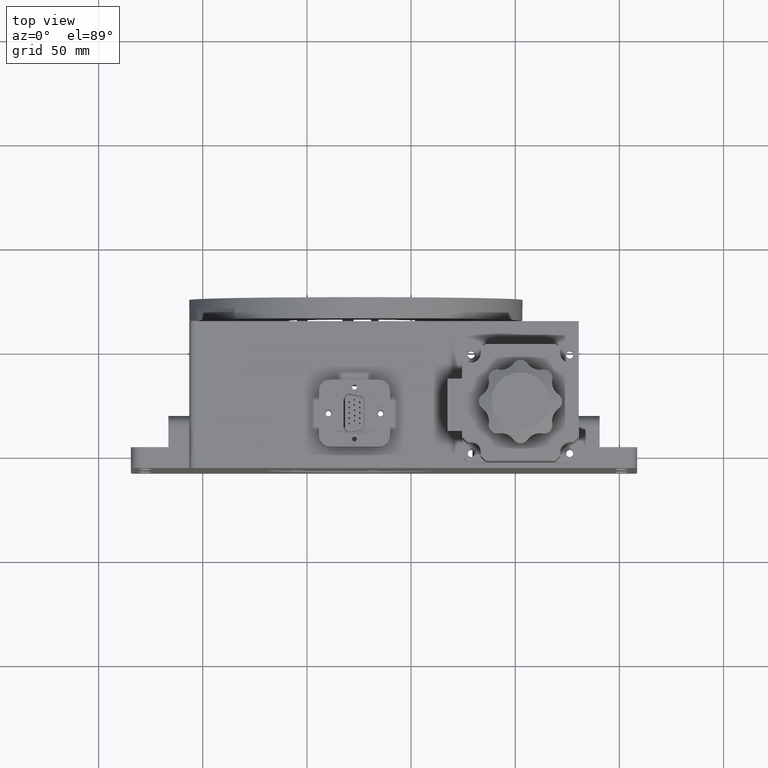
[diagram: clean part render]
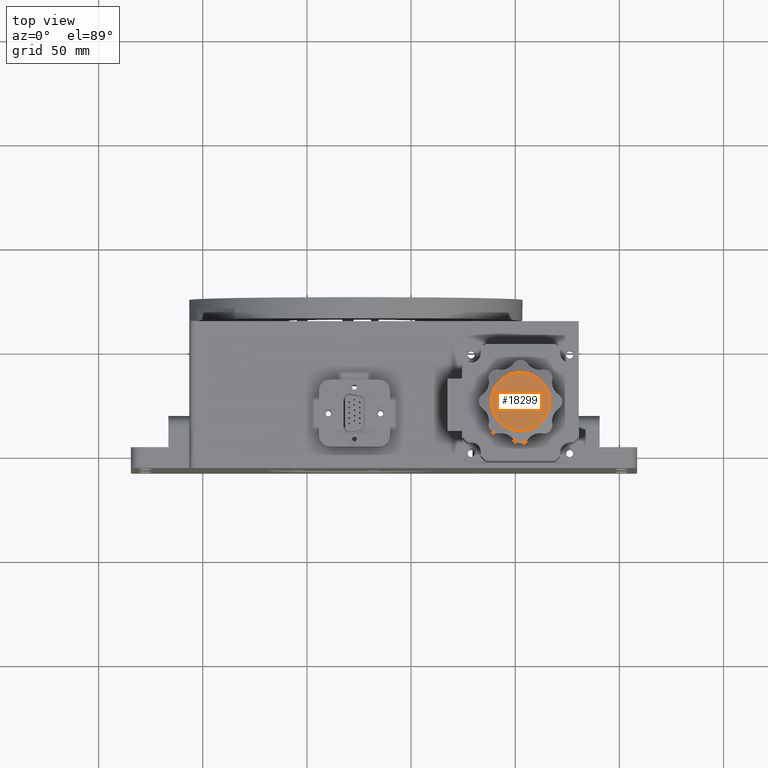
[diagram: same view with one face highlighted and labeled with its STEP entity id]
A machine part, top view. The second image highlights one B-rep face of the part: STEP entity #18299.
In plain terms, the highlighted planar face has unit normal (-0, -0, -1).
Its self-contained STEP definition (entity closure, byte-faithful):
#3814 = AXIS2_PLACEMENT_3D ( 'NONE', #62390, #12269, #70787 ) ;
#5010 = VERTEX_POINT ( 'NONE', #81572 ) ;
#11228 = EDGE_LOOP ( 'NONE', ( #67385, #38792 ) ) ;
#12269 = DIRECTION ( 'NONE',  ( 1.163031447535773400E-017, 1.979074067935038000E-017, 1.000000000000000000 ) ) ;
#18225 = CARTESIAN_POINT ( 'NONE',  ( 266.4999999999999400, 22.99999999999997900, 159.7999999999999800 ) ) ;
#18299 = ADVANCED_FACE ( 'NONE', ( #32033 ), #76177, .F. ) ;
#20809 = AXIS2_PLACEMENT_3D ( 'NONE', #71735, #21604, #80148 ) ;
#21604 = DIRECTION ( 'NONE',  ( 1.163031447535773400E-017, 1.979074067935038000E-017, 1.000000000000000000 ) ) ;
#26336 = CARTESIAN_POINT ( 'NONE',  ( 262.8274636437142800, 6.067297206429303800, 159.7999999999999800 ) ) ;
#32033 = FACE_OUTER_BOUND ( 'NONE', #11228, .T. ) ;
#33388 = CIRCLE ( 'NONE', #3814, 13.99999999999998400 ) ;
#34754 = DIRECTION ( 'NONE',  ( 1.000000000000000000, 1.665334536937735600E-016, -1.163031447535775000E-017 ) ) ;
#38792 = ORIENTED_EDGE ( 'NONE', *, *, #81890, .T. ) ;
#62390 = CARTESIAN_POINT ( 'NONE',  ( 252.4999999999999400, 22.99999999999997200, 159.7999999999999800 ) ) ;
#66920 = CIRCLE ( 'NONE', #20809, 13.99999999999998400 ) ;
#67385 = ORIENTED_EDGE ( 'NONE', *, *, #92417, .T. ) ;
#70787 = DIRECTION ( 'NONE',  ( -1.000000000000000000, -2.478176394252584600E-016, 0.0000000000000000000 ) ) ;
#71735 = CARTESIAN_POINT ( 'NONE',  ( 252.4999999999999400, 22.99999999999997200, 159.7999999999999800 ) ) ;
#76177 = PLANE ( 'NONE',  #80303 ) ;
#80148 = DIRECTION ( 'NONE',  ( -1.000000000000000000, -2.478176394252584600E-016, 0.0000000000000000000 ) ) ;
#80303 = AXIS2_PLACEMENT_3D ( 'NONE', #26336, #84954, #34754 ) ;
#81572 = CARTESIAN_POINT ( 'NONE',  ( 238.4999999999999700, 22.99999999999996800, 159.7999999999999800 ) ) ;
#81890 = EDGE_CURVE ( 'NONE', #82733, #5010, #33388, .T. ) ;
#82733 = VERTEX_POINT ( 'NONE', #18225 ) ;
#84954 = DIRECTION ( 'NONE',  ( -1.163031447535774700E-017, -1.979074067935038000E-017, -1.000000000000000000 ) ) ;
#92417 = EDGE_CURVE ( 'NONE', #5010, #82733, #66920, .T. ) ;